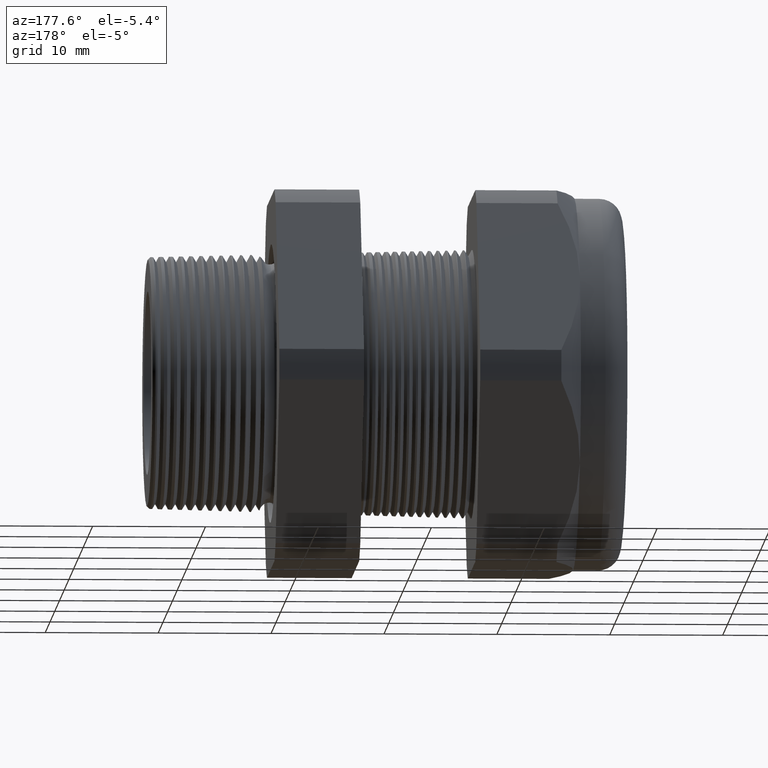
[diagram: clean part render]
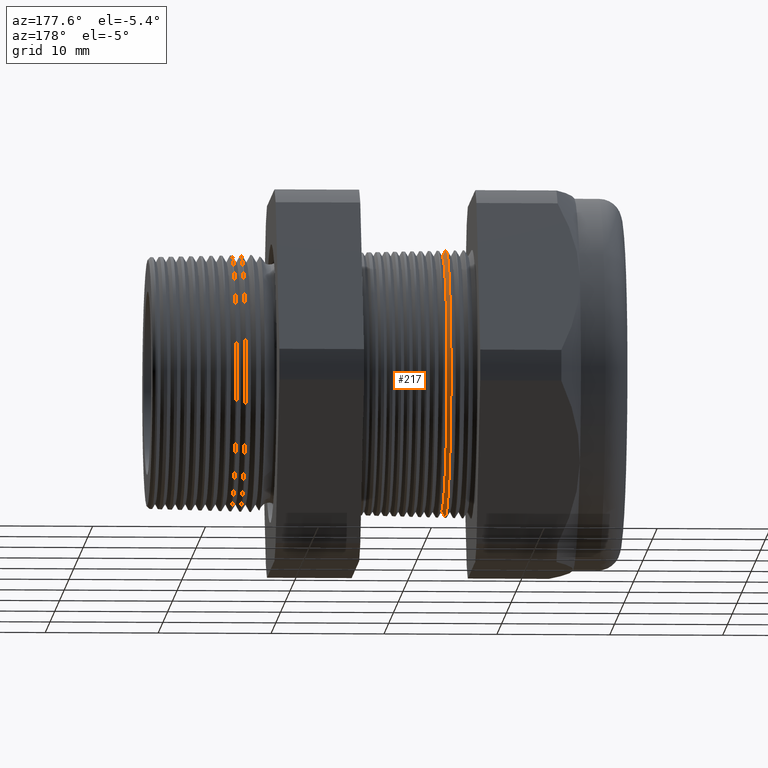
[diagram: same view with one face highlighted and labeled with its STEP entity id]
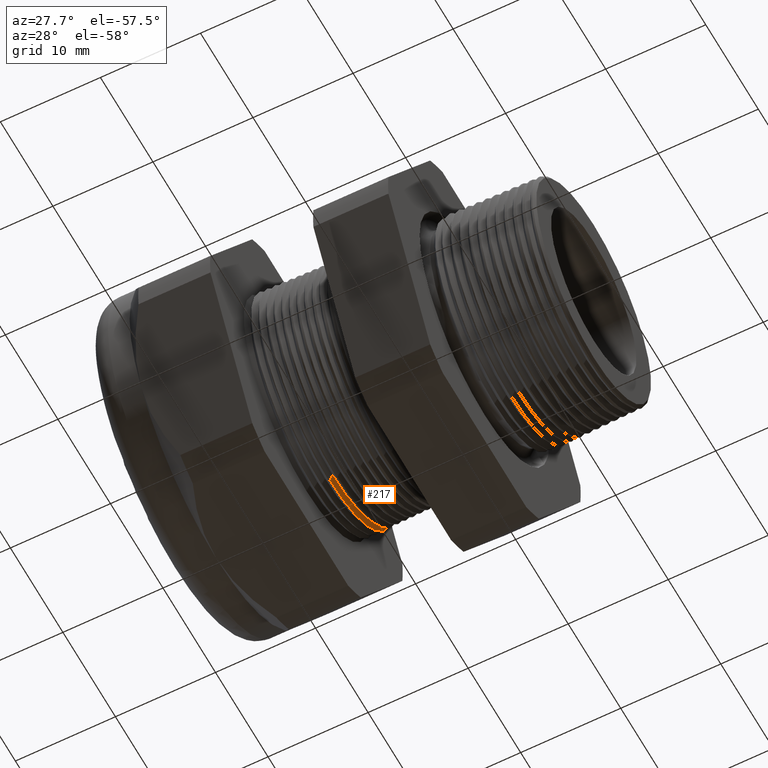
[diagram: same view with one face highlighted and labeled with its STEP entity id]
A machine part, auxiliary view. The second image highlights one B-rep face of the part: STEP entity #217.
A second angle (auxiliary view) of the same face is appended — the face is thin or edge-on in the first view.
In plain terms, the highlighted conical surface has half-angle 61.5 deg.
Its self-contained STEP definition (entity closure, byte-faithful):
#202 = ORIENTED_EDGE ( 'NONE', *, *, #203, .F. ) ;
#203 = EDGE_CURVE ( 'NONE', #856, #211, #2966, .T. ) ;
#209 = ORIENTED_EDGE ( 'NONE', *, *, #210, .T. ) ;
#210 = EDGE_CURVE ( 'NONE', #215, #211, #3014, .T. ) ;
#211 = VERTEX_POINT ( 'NONE', #3009 ) ;
#213 = ORIENTED_EDGE ( 'NONE', *, *, #214, .T. ) ;
#214 = EDGE_CURVE ( 'NONE', #904, #215, #3008, .T. ) ;
#215 = VERTEX_POINT ( 'NONE', #3004 ) ;
#217 = ADVANCED_FACE ( 'NONE', ( #2999 ), #2998, .T. ) ;
#218 = EDGE_LOOP ( 'NONE', ( #219, #213, #209, #202 ) ) ;
#219 = ORIENTED_EDGE ( 'NONE', *, *, #855, .F. ) ;
#855 = EDGE_CURVE ( 'NONE', #904, #856, #4328, .T. ) ;
#856 = VERTEX_POINT ( 'NONE', #4324 ) ;
#904 = VERTEX_POINT ( 'NONE', #4422 ) ;
#2963 = DIRECTION ( 'NONE',  ( -0.4771587602596201200, 0.0000000000000000000, 0.8788171126619589400 ) ) ;
#2964 = VECTOR ( 'NONE', #2963, 39.37007874015748100 ) ;
#2965 = CARTESIAN_POINT ( 'NONE',  ( -0.9203149606299212400, 0.0000000000000000000, 0.4699999999999999700 ) ) ;
#2966 = LINE ( 'NONE', #2965, #2964 ) ;
#2993 = DIRECTION ( 'NONE',  ( 0.0000000000000000000, 0.0000000000000000000, 1.000000000000000000 ) ) ;
#2994 = DIRECTION ( 'NONE',  ( -1.000000000000000000, 0.0000000000000000000, 0.0000000000000000000 ) ) ;
#2995 = CARTESIAN_POINT ( 'NONE',  ( -0.9203149606299212400, 0.0000000000000000000, 0.0000000000000000000 ) ) ;
#2996 = AXIS2_PLACEMENT_3D ( 'NONE', #2995, #2994, #2993 ) ;
#2998 = CONICAL_SURFACE ( 'NONE', #2996, 0.4699999999999999700, 1.073377489976499400 ) ;
#2999 = FACE_OUTER_BOUND ( 'NONE', #218, .T. ) ;
#3004 = CARTESIAN_POINT ( 'NONE',  ( -0.9190169035368334100, 5.727105280065575800E-017, -0.4676092762375418400 ) ) ;
#3005 = DIRECTION ( 'NONE',  ( -0.4771587602596201200, 1.076240564057387000E-016, -0.8788171126619589400 ) ) ;
#3006 = VECTOR ( 'NONE', #3005, 39.37007874015748100 ) ;
#3007 = CARTESIAN_POINT ( 'NONE',  ( -0.9203149606299212400, 5.755839955992559700E-017, -0.4699999999999999700 ) ) ;
#3008 = LINE ( 'NONE', #3007, #3006 ) ;
#3009 = CARTESIAN_POINT ( 'NONE',  ( -0.9190169035368334100, 0.0000000000000000000, 0.4676092762375418400 ) ) ;
#3010 = DIRECTION ( 'NONE',  ( 0.0000000000000000000, 0.0000000000000000000, 1.000000000000000000 ) ) ;
#3011 = DIRECTION ( 'NONE',  ( 1.000000000000000000, 0.0000000000000000000, 0.0000000000000000000 ) ) ;
#3012 = CARTESIAN_POINT ( 'NONE',  ( -0.9190169035368334100, 0.0000000000000000000, 0.0000000000000000000 ) ) ;
#3013 = AXIS2_PLACEMENT_3D ( 'NONE', #3012, #3011, #3010 ) ;
#3014 = CIRCLE ( 'NONE', #3013, 0.4676092762375418400 ) ;
#4324 = CARTESIAN_POINT ( 'NONE',  ( -0.9065405736958172000, 0.0000000000000000000, 0.4446307351718083400 ) ) ;
#4325 = DIRECTION ( 'NONE',  ( 0.0000000000000000000, 0.0000000000000000000, -1.000000000000000000 ) ) ;
#4326 = DIRECTION ( 'NONE',  ( 1.000000000000000000, 0.0000000000000000000, 0.0000000000000000000 ) ) ;
#4327 = AXIS2_PLACEMENT_3D ( 'NONE', #4335, #4326, #4325 ) ;
#4328 = CIRCLE ( 'NONE', #4327, 0.4446307351718083400 ) ;
#4335 = CARTESIAN_POINT ( 'NONE',  ( -0.9065405736958172000, 0.0000000000000000000, 0.0000000000000000000 ) ) ;
#4422 = CARTESIAN_POINT ( 'NONE',  ( -0.9065405736958172000, 5.585859050133028000E-017, -0.4446307351718083400 ) ) ;